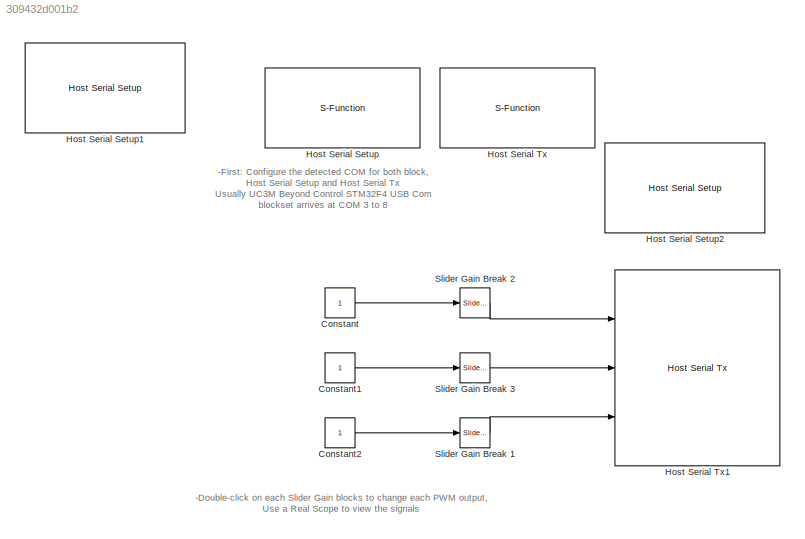
MODEL slx_309432d001b2
KIND model
CONFIG AbsTol = auto
CONFIG EnableMultiTasking = on
CONFIG FixedStep = 0.001
CONFIG MaxStep = auto
CONFIG MinStep = auto
CONFIG RelTol = 1e-3
CONFIG SampleTimeConstraint = Unconstrained
CONFIG Solver = ode3
CONFIG SolverName = ode3
CONFIG StartTime = 0.0
CONFIG StopTime = inf
BLOCK [Constant] Constant
  OutDataTypeStr = single
  SampleTime = -1
BLOCK [Constant] Constant1
  OutDataTypeStr = single
  SampleTime = -1
BLOCK [Constant] Constant2
  OutDataTypeStr = single
  SampleTime = -1
BLOCK [S-Function] Host Serial Setup
  Commented = on
  EnableBusSupport = off
  FunctionName = amg_usbconverter_n_serial
  Parameters = configuration,port,transfer,baudrate,stopbit,inputtype,outputtype,binheaderarray,binterminatorarray,asciiheader,asciiterminator,bindatalength,packetmode,timeout,sampletime,sampletimestr,blockid
  Ports = []
  Priority = 1
  SFcnIsStateOwnerBlock = off
  SFunctionDeploymentMode = off
BLOCK [Reference] Host Serial Setup1  REF=amg_usbconverter_n_connect_lib/Host Serial Setup
  Ports = []
  SourceBlock = amg_usbconverter_n_connect_lib/Host Serial Setup
  SourceType = amg_usbconverter_n_connect
BLOCK [Reference] Host Serial Setup2  REF=amg_usbconverter_n_connect_lib/Host Serial Setup
  Commented = on
  Ports = []
  SourceBlock = amg_usbconverter_n_connect_lib/Host Serial Setup
  SourceType = amg_usbconverter_n_connect
BLOCK [S-Function] Host Serial Tx
  Commented = on
  EnableBusSupport = off
  FunctionName = amg_usbconverter_n_serial
  Parameters = configuration,port,transfer,baudrate,stopbit,inputtype,outputtype,binheaderarray,binterminatorarray,asciiheader,asciiterminator,bindatalength,packetmode,timeout,sampletime,sampletimestr,blockid
  Ports = [2]
  Priority = 1
  SFcnIsStateOwnerBlock = off
  SFunctionDeploymentMode = off
BLOCK [Reference] Host Serial Tx1  REF=amg_usbconverter_n_connect_lib/Host Serial Tx
  Ports = [3]
  SourceBlock = amg_usbconverter_n_connect_lib/Host Serial Tx
  SourceType = amg_usbconverter_n_connect
BLOCK [Reference] Slider Gain Break 1  REF=simulink/Math
Operations/Slider
Gain
  Ports = [1, 1]
  SourceBlock = simulink/Math\nOperations/Slider\nGain
  SourceType = Slider Gain
BLOCK [Reference] Slider Gain Break 2  REF=simulink/Math
Operations/Slider
Gain
  Ports = [1, 1]
  SourceBlock = simulink/Math\nOperations/Slider\nGain
  SourceType = Slider Gain
BLOCK [Reference] Slider Gain Break 3  REF=simulink/Math
Operations/Slider
Gain
  Ports = [1, 1]
  SourceBlock = simulink/Math\nOperations/Slider\nGain
  SourceType = Slider Gain
ANNOTATION (root): -Double-click on each Slider Gain blocks to change each PWM output, Use a Real Scope to view the signals
ANNOTATION (root): -First: Configure the detected COM for both block, Host Serial Setup and Host Serial Tx Usually UC3M Beyond Control STM32F4 USB Com blockset arrives at COM 3 to 8
LINE Constant1:1 -> Slider Gain Break 3:1
LINE Constant2:1 -> Slider Gain Break 1:1
LINE Constant:1 -> Slider Gain Break 2:1
LINE Slider Gain Break 1:1 -> Host Serial Tx1:3
LINE Slider Gain Break 2:1 -> Host Serial Tx1:1
LINE Slider Gain Break 3:1 -> Host Serial Tx1:2
